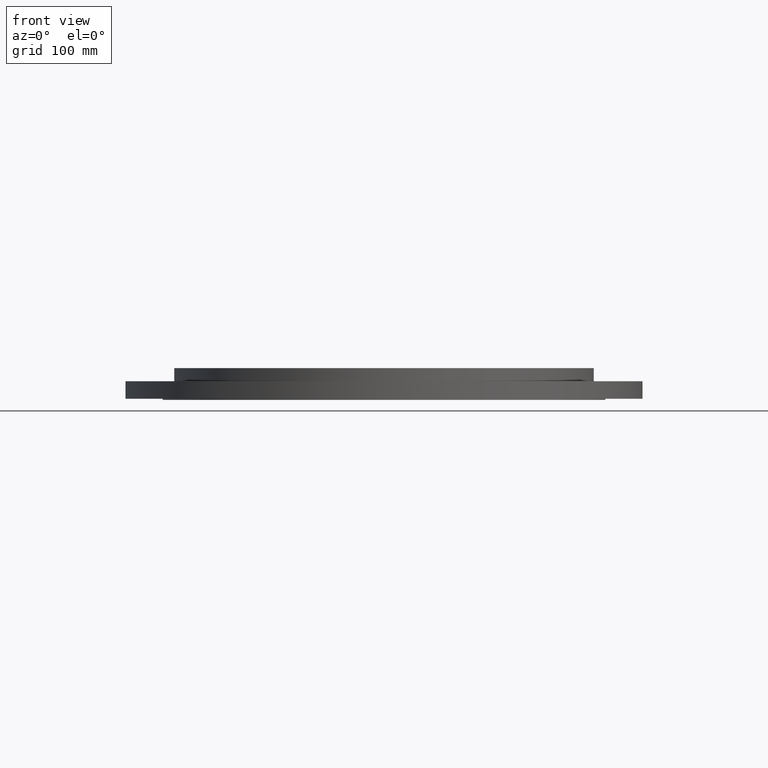
[diagram: clean part render]
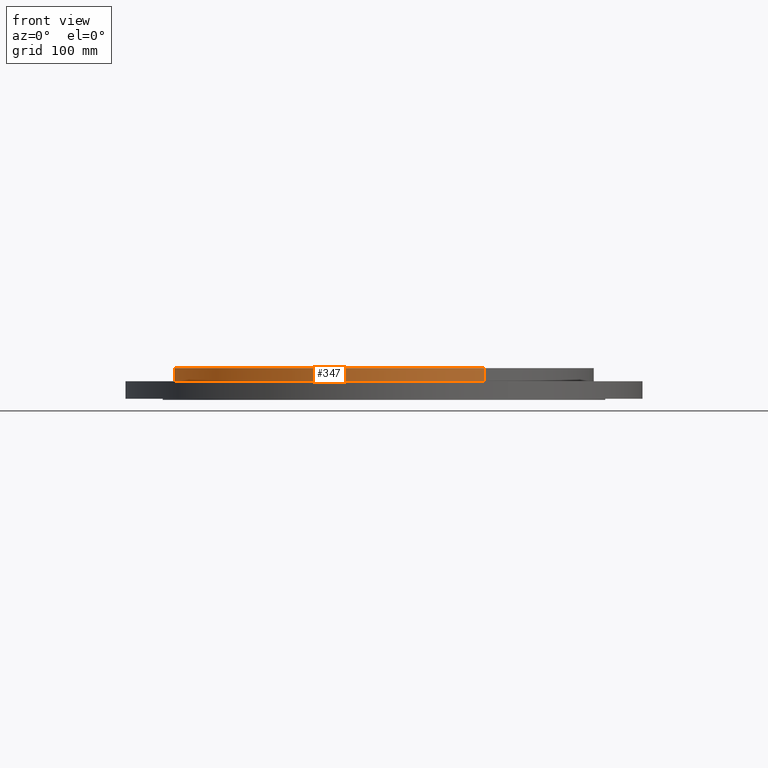
[diagram: same view with one face highlighted and labeled with its STEP entity id]
A machine part, front view. The second image highlights one B-rep face of the part: STEP entity #347.
In plain terms, the highlighted cylindrical surface (partial cylindrical patch) has radius 304.8 mm, axis along (0, 0, 1).
Its self-contained STEP definition (entity closure, byte-faithful):
#293=AXIS2_PLACEMENT_3D('Circle Axis2P3D',#291,#292,$) ;
#308=AXIS2_PLACEMENT_3D('Cylinder Axis2P3D',#305,#306,#307) ;
#338=AXIS2_PLACEMENT_3D('Circle Axis2P3D',#336,#337,$) ;
#286=CARTESIAN_POINT('Vertex',(5.75310646327,-10.5309907427,1.75000000001)) ;
#288=CARTESIAN_POINT('Vertex',(-5.75310646327,10.5309907427,1.75000000001)) ;
#291=CARTESIAN_POINT('Axis2P3D Location',(0.,0.,1.75000000001)) ;
#305=CARTESIAN_POINT('Axis2P3D Location',(0.,0.,0.843750000003)) ;
#310=CARTESIAN_POINT('Line Origine',(-5.75310646327,10.5309907427,1.37500000001)) ;
#314=CARTESIAN_POINT('Vertex',(-5.75310646327,10.5309907427,1.)) ;
#317=CARTESIAN_POINT('Line Origine',(5.75310646327,-10.5309907427,1.37500000001)) ;
#321=CARTESIAN_POINT('Vertex',(5.75310646327,-10.5309907427,1.)) ;
#336=CARTESIAN_POINT('Axis2P3D Location',(0.,0.,1.)) ;
#292=DIRECTION('Axis2P3D Direction',(0.,0.,0.0393700787402)) ;
#306=DIRECTION('Axis2P3D Direction',(0.,0.,0.0393700787402)) ;
#307=DIRECTION('Axis2P3D XDirection',(-0.0188750212049,0.0345504945626,0.)) ;
#311=DIRECTION('Vector Direction',(0.,0.,0.0393700787402)) ;
#318=DIRECTION('Vector Direction',(0.,0.,0.0393700787402)) ;
#337=DIRECTION('Axis2P3D Direction',(0.,0.,0.0393700787402)) ;
#312=VECTOR('Line Direction',#311,0.0393700787402) ;
#319=VECTOR('Line Direction',#318,0.0393700787402) ;
#342=ORIENTED_EDGE('',*,*,#323,.T.) ;
#343=ORIENTED_EDGE('',*,*,#295,.F.) ;
#344=ORIENTED_EDGE('',*,*,#316,.F.) ;
#345=ORIENTED_EDGE('',*,*,#340,.T.) ;
#347=ADVANCED_FACE('PartBody',(#346),#309,.T.) ;
#294=CIRCLE('generated circle',#293,12.) ;
#339=CIRCLE('generated circle',#338,12.) ;
#309=CYLINDRICAL_SURFACE('generated cylinder',#308,12.) ;
#295=EDGE_CURVE('',#289,#287,#294,.T.) ;
#316=EDGE_CURVE('',#315,#289,#313,.T.) ;
#323=EDGE_CURVE('',#322,#287,#320,.T.) ;
#340=EDGE_CURVE('',#315,#322,#339,.T.) ;
#341=EDGE_LOOP('',(#342,#343,#344,#345)) ;
#346=FACE_OUTER_BOUND('',#341,.T.) ;
#313=LINE('Line',#310,#312) ;
#320=LINE('Line',#317,#319) ;
#287=VERTEX_POINT('',#286) ;
#289=VERTEX_POINT('',#288) ;
#315=VERTEX_POINT('',#314) ;
#322=VERTEX_POINT('',#321) ;